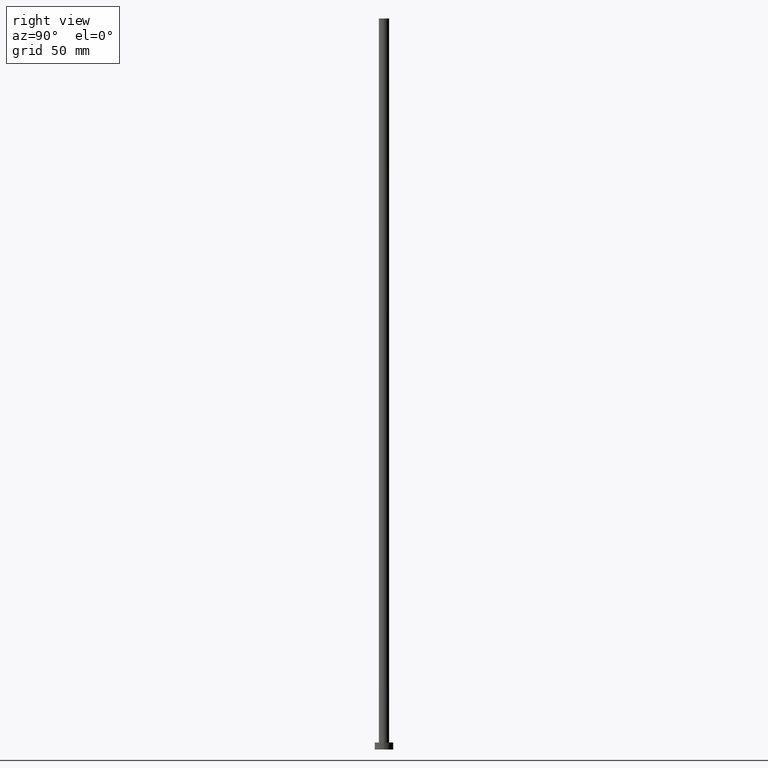
[diagram: clean part render]
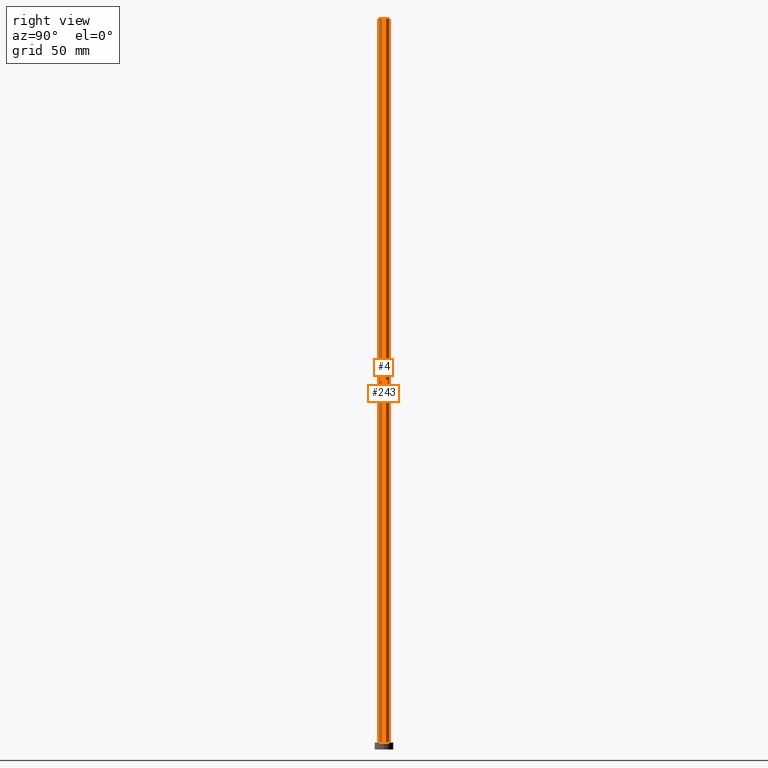
[diagram: same view with one multi-face feature highlighted, each face labeled with its STEP entity id]
A machine part, right view. The highlighted faces form ONE feature: a constant-radius fillet chain: 2 tangent blend faces with common blend radius 2.25 mm. The faces share edges in the B-rep.
Their STEP definitions:
[1] entity #4 (Cylinder):
#4 = ADVANCED_FACE ( 'NONE', ( #28 ), #208, .T. ) ;
#8 = CARTESIAN_POINT ( 'NONE',  ( 0.000000000000000000, 0.000000000000000000, 315.0000000000000000 ) ) ;
#12 = DIRECTION ( 'NONE',  ( -0.000000000000000000, -0.000000000000000000, -1.000000000000000000 ) ) ;
#13 = DIRECTION ( 'NONE',  ( 1.000000000000000000, 0.000000000000000000, 0.000000000000000000 ) ) ;
#15 = CARTESIAN_POINT ( 'NONE',  ( 2.250000000000000000, 2.755455298081544285E-16, 3.000000000000000000 ) ) ;
#28 = FACE_OUTER_BOUND ( 'NONE', #65, .T. ) ;
#29 = EDGE_CURVE ( 'NONE', #70, #130, #57, .T. ) ;
#32 = DIRECTION ( 'NONE',  ( 0.000000000000000000, 0.000000000000000000, 1.000000000000000000 ) ) ;
#54 = DIRECTION ( 'NONE',  ( -0.000000000000000000, -0.000000000000000000, -1.000000000000000000 ) ) ;
#55 = EDGE_CURVE ( 'NONE', #131, #70, #115, .T. ) ;
#57 = CIRCLE ( 'NONE', #204, 2.250000000000000000 ) ;
#60 = CARTESIAN_POINT ( 'NONE',  ( -2.250000000000000000, 0.000000000000000000, 3.000000000000000000 ) ) ;
#65 = EDGE_LOOP ( 'NONE', ( #221, #242, #227, #94 ) ) ;
#70 = VERTEX_POINT ( 'NONE', #60 ) ;
#91 = AXIS2_PLACEMENT_3D ( 'NONE', #100, #194, #13 ) ;
#92 = DIRECTION ( 'NONE',  ( -1.000000000000000000, 0.000000000000000000, 0.000000000000000000 ) ) ;
#94 = ORIENTED_EDGE ( 'NONE', *, *, #29, .T. ) ;
#100 = CARTESIAN_POINT ( 'NONE',  ( 0.000000000000000000, 0.000000000000000000, 315.0000000000000000 ) ) ;
#107 = DIRECTION ( 'NONE',  ( -0.000000000000000000, -0.000000000000000000, -1.000000000000000000 ) ) ;
#115 = LINE ( 'NONE', #192, #252 ) ;
#124 = EDGE_CURVE ( 'NONE', #131, #150, #245, .T. ) ;
#129 = AXIS2_PLACEMENT_3D ( 'NONE', #8, #107, #92 ) ;
#130 = VERTEX_POINT ( 'NONE', #15 ) ;
#131 = VERTEX_POINT ( 'NONE', #213 ) ;
#134 = CARTESIAN_POINT ( 'NONE',  ( 2.250000000000000000, 2.755455298081544285E-16, 315.0000000000000000 ) ) ;
#150 = VERTEX_POINT ( 'NONE', #155 ) ;
#155 = CARTESIAN_POINT ( 'NONE',  ( 2.250000000000000000, 2.755455298081544285E-16, 315.0000000000000000 ) ) ;
#174 = LINE ( 'NONE', #134, #178 ) ;
#178 = VECTOR ( 'NONE', #12, 1000.000000000000000 ) ;
#192 = CARTESIAN_POINT ( 'NONE',  ( -2.250000000000000000, 0.000000000000000000, 315.0000000000000000 ) ) ;
#194 = DIRECTION ( 'NONE',  ( 0.000000000000000000, 0.000000000000000000, 1.000000000000000000 ) ) ;
#204 = AXIS2_PLACEMENT_3D ( 'NONE', #222, #32, #210 ) ;
#208 = CYLINDRICAL_SURFACE ( 'NONE', #129, 2.250000000000000000 ) ;
#210 = DIRECTION ( 'NONE',  ( 1.000000000000000000, 0.000000000000000000, 0.000000000000000000 ) ) ;
#213 = CARTESIAN_POINT ( 'NONE',  ( -2.250000000000000000, 0.000000000000000000, 315.0000000000000000 ) ) ;
#221 = ORIENTED_EDGE ( 'NONE', *, *, #238, .F. ) ;
#222 = CARTESIAN_POINT ( 'NONE',  ( 0.000000000000000000, 0.000000000000000000, 3.000000000000000000 ) ) ;
#227 = ORIENTED_EDGE ( 'NONE', *, *, #55, .T. ) ;
#238 = EDGE_CURVE ( 'NONE', #150, #130, #174, .T. ) ;
#242 = ORIENTED_EDGE ( 'NONE', *, *, #124, .F. ) ;
#245 = CIRCLE ( 'NONE', #91, 2.250000000000000000 ) ;
#252 = VECTOR ( 'NONE', #54, 1000.000000000000000 ) ;
[2] entity #243 (Cylinder):
#9 = CIRCLE ( 'NONE', #45, 2.250000000000000000 ) ;
#12 = DIRECTION ( 'NONE',  ( -0.000000000000000000, -0.000000000000000000, -1.000000000000000000 ) ) ;
#15 = CARTESIAN_POINT ( 'NONE',  ( 2.250000000000000000, 2.755455298081544285E-16, 3.000000000000000000 ) ) ;
#37 = DIRECTION ( 'NONE',  ( 0.000000000000000000, 0.000000000000000000, 1.000000000000000000 ) ) ;
#38 = CARTESIAN_POINT ( 'NONE',  ( 0.000000000000000000, 0.000000000000000000, 3.000000000000000000 ) ) ;
#43 = ORIENTED_EDGE ( 'NONE', *, *, #55, .F. ) ;
#44 = ORIENTED_EDGE ( 'NONE', *, *, #191, .T. ) ;
#45 = AXIS2_PLACEMENT_3D ( 'NONE', #38, #253, #173 ) ;
#51 = DIRECTION ( 'NONE',  ( 1.000000000000000000, 0.000000000000000000, 0.000000000000000000 ) ) ;
#54 = DIRECTION ( 'NONE',  ( -0.000000000000000000, -0.000000000000000000, -1.000000000000000000 ) ) ;
#55 = EDGE_CURVE ( 'NONE', #131, #70, #115, .T. ) ;
#60 = CARTESIAN_POINT ( 'NONE',  ( -2.250000000000000000, 0.000000000000000000, 3.000000000000000000 ) ) ;
#66 = AXIS2_PLACEMENT_3D ( 'NONE', #141, #219, #158 ) ;
#70 = VERTEX_POINT ( 'NONE', #60 ) ;
#82 = CARTESIAN_POINT ( 'NONE',  ( 0.000000000000000000, 0.000000000000000000, 315.0000000000000000 ) ) ;
#90 = ORIENTED_EDGE ( 'NONE', *, *, #220, .F. ) ;
#106 = AXIS2_PLACEMENT_3D ( 'NONE', #82, #37, #51 ) ;
#115 = LINE ( 'NONE', #192, #252 ) ;
#130 = VERTEX_POINT ( 'NONE', #15 ) ;
#131 = VERTEX_POINT ( 'NONE', #213 ) ;
#134 = CARTESIAN_POINT ( 'NONE',  ( 2.250000000000000000, 2.755455298081544285E-16, 315.0000000000000000 ) ) ;
#135 = FACE_OUTER_BOUND ( 'NONE', #209, .T. ) ;
#141 = CARTESIAN_POINT ( 'NONE',  ( 0.000000000000000000, 0.000000000000000000, 315.0000000000000000 ) ) ;
#150 = VERTEX_POINT ( 'NONE', #155 ) ;
#155 = CARTESIAN_POINT ( 'NONE',  ( 2.250000000000000000, 2.755455298081544285E-16, 315.0000000000000000 ) ) ;
#158 = DIRECTION ( 'NONE',  ( -1.000000000000000000, 0.000000000000000000, 0.000000000000000000 ) ) ;
#161 = CIRCLE ( 'NONE', #106, 2.250000000000000000 ) ;
#173 = DIRECTION ( 'NONE',  ( 1.000000000000000000, 0.000000000000000000, 0.000000000000000000 ) ) ;
#174 = LINE ( 'NONE', #134, #178 ) ;
#178 = VECTOR ( 'NONE', #12, 1000.000000000000000 ) ;
#180 = ORIENTED_EDGE ( 'NONE', *, *, #238, .T. ) ;
#191 = EDGE_CURVE ( 'NONE', #130, #70, #9, .T. ) ;
#192 = CARTESIAN_POINT ( 'NONE',  ( -2.250000000000000000, 0.000000000000000000, 315.0000000000000000 ) ) ;
#209 = EDGE_LOOP ( 'NONE', ( #90, #180, #44, #43 ) ) ;
#213 = CARTESIAN_POINT ( 'NONE',  ( -2.250000000000000000, 0.000000000000000000, 315.0000000000000000 ) ) ;
#219 = DIRECTION ( 'NONE',  ( -0.000000000000000000, -0.000000000000000000, -1.000000000000000000 ) ) ;
#220 = EDGE_CURVE ( 'NONE', #150, #131, #161, .T. ) ;
#237 = CYLINDRICAL_SURFACE ( 'NONE', #66, 2.250000000000000000 ) ;
#238 = EDGE_CURVE ( 'NONE', #150, #130, #174, .T. ) ;
#243 = ADVANCED_FACE ( 'NONE', ( #135 ), #237, .T. ) ;
#252 = VECTOR ( 'NONE', #54, 1000.000000000000000 ) ;
#253 = DIRECTION ( 'NONE',  ( 0.000000000000000000, 0.000000000000000000, 1.000000000000000000 ) ) ;